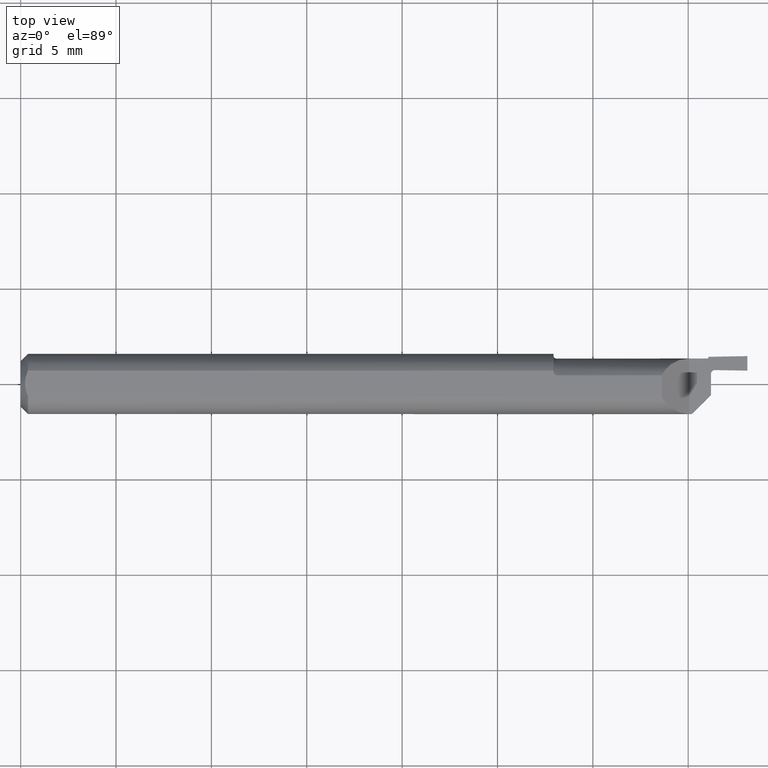
[diagram: clean part render]
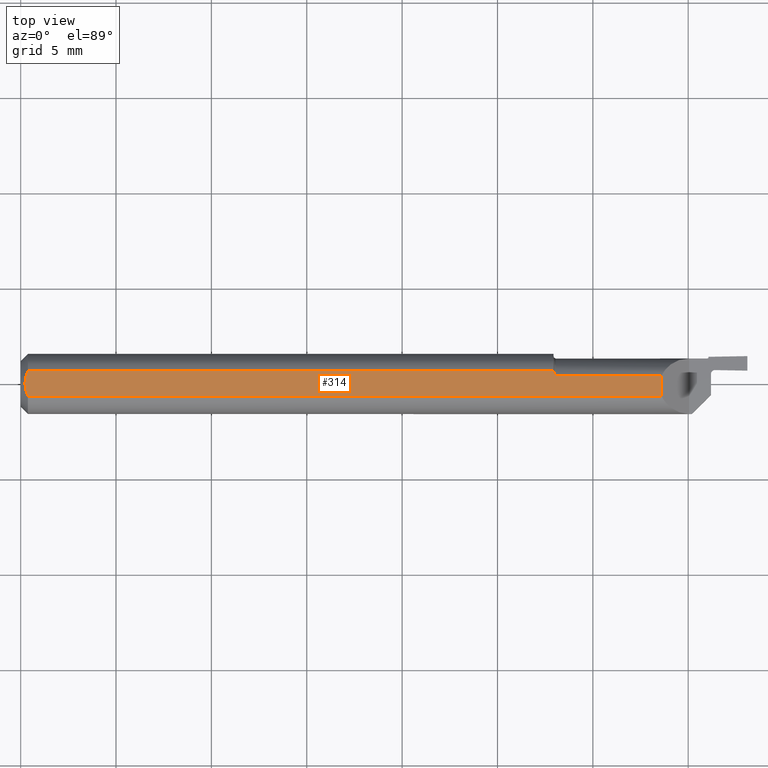
[diagram: same view with one face highlighted and labeled with its STEP entity id]
A machine part, top view. The second image highlights one B-rep face of the part: STEP entity #314.
In plain terms, the highlighted planar face has unit normal (0, 0, -1).
Its self-contained STEP definition (entity closure, byte-faithful):
#15 = CARTESIAN_POINT ( 'NONE',  ( 1.104999999999999982, 0.01688490924104400076, 0.05634999999999998344 ) ) ;
#53 = CARTESIAN_POINT ( 'NONE',  ( 1.323499999999999677, -0.02668707552355638682, 0.05634999999999998344 ) ) ;
#67 = CARTESIAN_POINT ( 'NONE',  ( 0.01499999999996637530, -0.02668707552368985297, 0.05635000000000000425 ) ) ;
#79 = LINE ( 'NONE', #370, #363 ) ;
#81 = CARTESIAN_POINT ( 'NONE',  ( 1.100041386578069602, 0.02471711963996609321, 0.05635000000000000425 ) ) ;
#93 = VECTOR ( 'NONE', #712, 39.37007874015748143 ) ;
#94 = CARTESIAN_POINT ( 'NONE',  ( 0.01500000000000011394, 0.02668707552355635559, 0.05635000000000000425 ) ) ;
#102 = B_SPLINE_CURVE_WITH_KNOTS ( 'NONE', 3,
 ( #426, #414, #743, #144, #674, #67 ),
 .UNSPECIFIED., .F., .F.,
 ( 4, 2, 4 ),
 ( 0.001785160430147911910, 0.002131733753131888690, 0.002478307076115865686 ),
 .UNSPECIFIED. ) ;
#134 = VERTEX_POINT ( 'NONE', #700 ) ;
#144 = CARTESIAN_POINT ( 'NONE',  ( 0.01166922356462425300, -0.01807379779248688770, 0.05635000000000000425 ) ) ;
#165 = ORIENTED_EDGE ( 'NONE', *, *, #625, .F. ) ;
#167 = DIRECTION ( 'NONE',  ( 0.000000000000000000, 0.000000000000000000, -1.000000000000000000 ) ) ;
#175 = B_SPLINE_CURVE_WITH_KNOTS ( 'NONE', 3,
 ( #565, #643, #709, #519 ),
 .UNSPECIFIED., .F., .F.,
 ( 4, 4 ),
 ( 0.001092780784058554637, 0.001785160430147911910 ),
 .UNSPECIFIED. ) ;
#181 = VERTEX_POINT ( 'NONE', #810 ) ;
#199 = LINE ( 'NONE', #799, #829 ) ;
#205 = DIRECTION ( 'NONE',  ( -0.000000000000000000, 1.000000000000000000, 0.000000000000000000 ) ) ;
#222 = EDGE_CURVE ( 'NONE', #320, #181, #79, .T. ) ;
#229 = DIRECTION ( 'NONE',  ( 1.000000000000000000, 0.000000000000000000, 0.000000000000000000 ) ) ;
#249 = LINE ( 'NONE', #775, #93 ) ;
#252 = FACE_OUTER_BOUND ( 'NONE', #291, .T. ) ;
#262 = ORIENTED_EDGE ( 'NONE', *, *, #388, .F. ) ;
#264 = VERTEX_POINT ( 'NONE', #661 ) ;
#273 = VECTOR ( 'NONE', #229, 39.37007874015748143 ) ;
#287 = CARTESIAN_POINT ( 'NONE',  ( 1.103148664649122646, 0.01758531501189988452, 0.05634999999999999037 ) ) ;
#291 = EDGE_LOOP ( 'NONE', ( #262, #685, #855, #759, #765, #432, #165 ) ) ;
#314 = ADVANCED_FACE ( 'NONE', ( #252 ), #725, .F. ) ;
#320 = VERTEX_POINT ( 'NONE', #53 ) ;
#351 = CARTESIAN_POINT ( 'NONE',  ( 1.104013313219835535, 0.01688490924104615876, 0.05634999999999997650 ) ) ;
#363 = VECTOR ( 'NONE', #817, 39.37007874015748143 ) ;
#370 = CARTESIAN_POINT ( 'NONE',  ( 0.000000000000000000, -0.02668707552355638682, 0.05634999999999998344 ) ) ;
#373 = CARTESIAN_POINT ( 'NONE',  ( 0.009000000000000066974, 6.900884745892311263E-18, 0.05635000000000000425 ) ) ;
#377 = CARTESIAN_POINT ( 'NONE',  ( 1.104999999999999982, 0.01688490924104400076, 0.05634999999999998344 ) ) ;
#388 = EDGE_CURVE ( 'NONE', #134, #522, #594, .T. ) ;
#408 = EDGE_CURVE ( 'NONE', #320, #264, #199, .T. ) ;
#414 = CARTESIAN_POINT ( 'NONE',  ( 0.009000000000000063505, -0.004637658848017920873, 0.05634999999999999037 ) ) ;
#425 = CARTESIAN_POINT ( 'NONE',  ( 1.101924463848613200, 0.01912086607440997843, 0.05635000000000001119 ) ) ;
#426 = CARTESIAN_POINT ( 'NONE',  ( 0.009000000000000066974, 6.900884745892311263E-18, 0.05635000000000000425 ) ) ;
#430 = LINE ( 'NONE', #757, #273 ) ;
#432 = ORIENTED_EDGE ( 'NONE', *, *, #408, .T. ) ;
#501 = EDGE_CURVE ( 'NONE', #568, #577, #175, .T. ) ;
#519 = CARTESIAN_POINT ( 'NONE',  ( 0.009000000000000066974, 6.900884745892311263E-18, 0.05635000000000000425 ) ) ;
#522 = VERTEX_POINT ( 'NONE', #377 ) ;
#544 = CARTESIAN_POINT ( 'NONE',  ( 1.100003143776919323, 0.02668707552265704372, 0.05635000000042590662 ) ) ;
#548 = CARTESIAN_POINT ( 'NONE',  ( 1.100396865427331505, 0.02276412510634830133, 0.05634999999999999037 ) ) ;
#565 = CARTESIAN_POINT ( 'NONE',  ( 0.01500000000000011394, 0.02668707552355635559, 0.05635000000000000425 ) ) ;
#568 = VERTEX_POINT ( 'NONE', #94 ) ;
#577 = VERTEX_POINT ( 'NONE', #373 ) ;
#589 = DIRECTION ( 'NONE',  ( -1.000000000000000000, 0.000000000000000000, -0.000000000000000000 ) ) ;
#594 = B_SPLINE_CURVE_WITH_KNOTS ( 'NONE', 3,
 ( #544, #81, #548, #673, #425, #287, #351, #15 ),
 .UNSPECIFIED., .F., .F.,
 ( 4, 2, 2, 4 ),
 ( 0.0008238848896419731418, 0.0009733588365373386543, 0.001048095809985019567, 0.001122832783432700481 ),
 .UNSPECIFIED. ) ;
#596 = CARTESIAN_POINT ( 'NONE',  ( 0.000000000000000000, -0.1623500000000000498, 0.05635000000000000425 ) ) ;
#625 = EDGE_CURVE ( 'NONE', #522, #264, #249, .T. ) ;
#643 = CARTESIAN_POINT ( 'NONE',  ( 0.01139633738538244415, 0.01826770548719445705, 0.05635000000000000425 ) ) ;
#644 = AXIS2_PLACEMENT_3D ( 'NONE', #596, #167, #589 ) ;
#661 = CARTESIAN_POINT ( 'NONE',  ( 1.323499999999999677, 0.01688490924104376137, 0.05635000000000000425 ) ) ;
#673 = CARTESIAN_POINT ( 'NONE',  ( 1.101473740665405820, 0.02001154322909410102, 0.05634999999999999037 ) ) ;
#674 = CARTESIAN_POINT ( 'NONE',  ( 0.01319705474129732187, -0.02247478793961370583, 0.05635000000000000425 ) ) ;
#685 = ORIENTED_EDGE ( 'NONE', *, *, #805, .F. ) ;
#700 = CARTESIAN_POINT ( 'NONE',  ( 1.100003143776919323, 0.02668707552265704372, 0.05635000000042590662 ) ) ;
#709 = CARTESIAN_POINT ( 'NONE',  ( 0.009000000000000065239, 0.009265054113880205611, 0.05635000000000000425 ) ) ;
#712 = DIRECTION ( 'NONE',  ( 1.000000000000000000, 0.000000000000000000, 0.000000000000000000 ) ) ;
#725 = PLANE ( 'NONE',  #644 ) ;
#734 = EDGE_CURVE ( 'NONE', #577, #181, #102, .T. ) ;
#743 = CARTESIAN_POINT ( 'NONE',  ( 0.009577454665859816071, -0.009172159571558409150, 0.05635000000000000425 ) ) ;
#757 = CARTESIAN_POINT ( 'NONE',  ( 0.000000000000000000, 0.02668707552355638682, 0.05634999999999998344 ) ) ;
#759 = ORIENTED_EDGE ( 'NONE', *, *, #734, .T. ) ;
#765 = ORIENTED_EDGE ( 'NONE', *, *, #222, .F. ) ;
#775 = CARTESIAN_POINT ( 'NONE',  ( 1.269052852351982619, 0.01688490924104400076, 0.05634999999999998344 ) ) ;
#799 = CARTESIAN_POINT ( 'NONE',  ( 1.323499999999999677, 0.02668707552355638682, 0.05635000000000000425 ) ) ;
#805 = EDGE_CURVE ( 'NONE', #568, #134, #430, .T. ) ;
#810 = CARTESIAN_POINT ( 'NONE',  ( 0.01499999999996637530, -0.02668707552368985297, 0.05635000000000000425 ) ) ;
#817 = DIRECTION ( 'NONE',  ( -1.000000000000000000, -0.000000000000000000, -0.000000000000000000 ) ) ;
#829 = VECTOR ( 'NONE', #205, 39.37007874015748143 ) ;
#855 = ORIENTED_EDGE ( 'NONE', *, *, #501, .T. ) ;